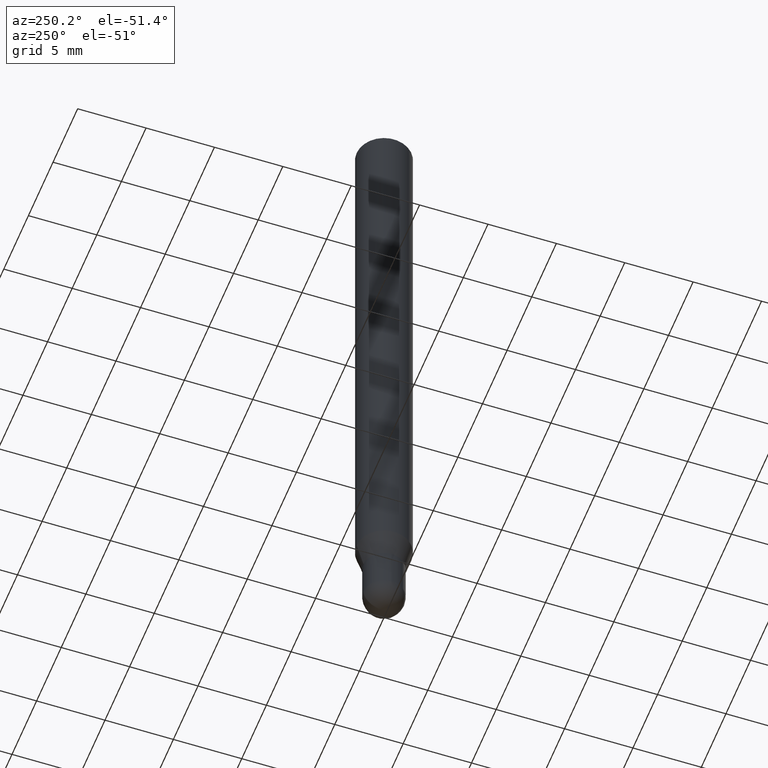
[diagram: clean part render]
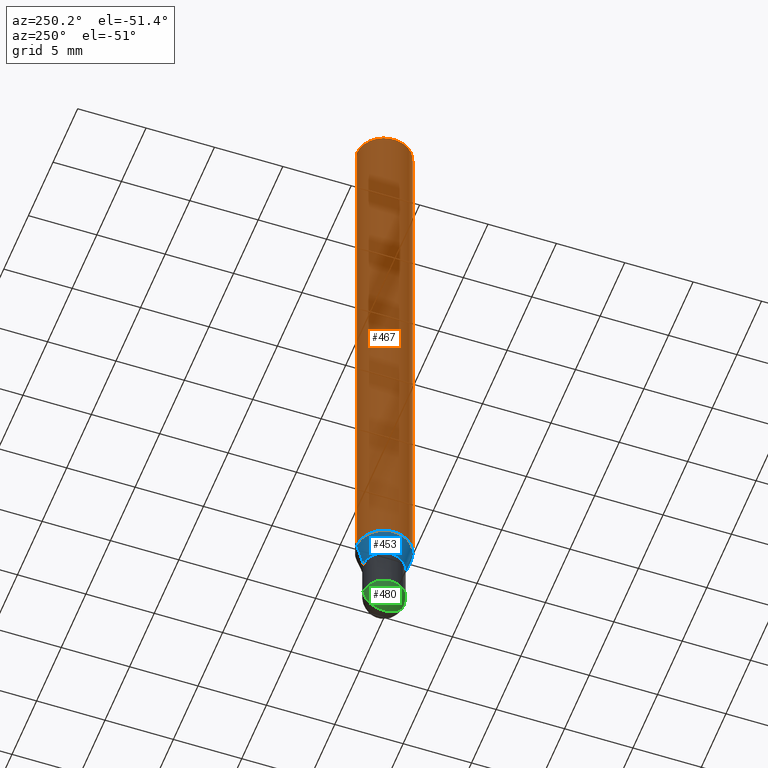
[diagram: same view with three faces highlighted in distinct colors, each labeled with its STEP entity id]
A machine part, auxiliary view with three faces highlighted in distinct colors.
Their STEP definitions:

[orange] entity #467 — the highlighted cylindrical surface (edge-blend (fillet) strip) has radius 2.0002 mm, axis along (-0, 0, 1).
#1 = CARTESIAN_POINT ( 'NONE',  ( 0.000000000000000000, 0.000000000000000000, 0.000000000000000000 ) ) ;
#16 = CARTESIAN_POINT ( 'NONE',  ( -5.499083108677930499E-16, -0.07875000000000004219, -0.01499999999999948944 ) ) ;
#49 = DIRECTION ( 'NONE',  ( -2.445166276302785085E-29, 3.491914578853604397E-15, 1.000000000000000000 ) ) ;
#51 = CARTESIAN_POINT ( 'NONE',  ( 5.595524044111208086E-16, 0.07874999999999401923, -1.717978599090896230 ) ) ;
#52 = CARTESIAN_POINT ( 'NONE',  ( 4.200743333906961214E-29, -5.999034516323990966E-15, -1.717978599090895786 ) ) ;
#54 = VERTEX_POINT ( 'NONE', #16 ) ;
#122 = EDGE_CURVE ( 'NONE', #133, #54, #143, .T. ) ;
#124 = DIRECTION ( 'NONE',  ( -6.982962677686264344E-15, -1.000000000000000000, 3.496114991891765576E-15 ) ) ;
#132 = DIRECTION ( 'NONE',  ( -6.982962677686264344E-15, -1.000000000000000000, 3.491914578853604002E-15 ) ) ;
#133 = VERTEX_POINT ( 'NONE', #436 ) ;
#143 = CIRCLE ( 'NONE', #299, 0.07875000000000000056 ) ;
#147 = CARTESIAN_POINT ( 'NONE',  ( -5.499083108677514374E-16, -0.07875000000000596800, -1.717978599090895564 ) ) ;
#161 = DIRECTION ( 'NONE',  ( -6.982962677686264344E-15, -1.000000000000000000, 3.469013325287953293E-15 ) ) ;
#163 = CARTESIAN_POINT ( 'NONE',  ( 3.667749414454120420E-31, -5.237871868280324701E-17, -0.01499999999999976526 ) ) ;
#202 = DIRECTION ( 'NONE',  ( -2.445166276302785085E-29, 3.491914578853604397E-15, 1.000000000000000000 ) ) ;
#204 = EDGE_CURVE ( 'NONE', #505, #322, #304, .T. ) ;
#205 = FACE_OUTER_BOUND ( 'NONE', #272, .T. ) ;
#224 = LINE ( 'NONE', #386, #306 ) ;
#228 = DIRECTION ( 'NONE',  ( -2.445166276302785085E-29, 3.491914578853604397E-15, 1.000000000000000000 ) ) ;
#238 = CARTESIAN_POINT ( 'NONE',  ( -5.499083108677933457E-16, -0.07875000000000000056, 2.749882730847213270E-16 ) ) ;
#272 = EDGE_LOOP ( 'NONE', ( #307, #279, #348, #465 ) ) ;
#279 = ORIENTED_EDGE ( 'NONE', *, *, #204, .T. ) ;
#299 = AXIS2_PLACEMENT_3D ( 'NONE', #163, #228, #124 ) ;
#304 = CIRCLE ( 'NONE', #407, 0.07875000000000000056 ) ;
#306 = VECTOR ( 'NONE', #341, 39.37007874015748143 ) ;
#307 = ORIENTED_EDGE ( 'NONE', *, *, #400, .F. ) ;
#322 = VERTEX_POINT ( 'NONE', #147 ) ;
#326 = DIRECTION ( 'NONE',  ( -2.445166276302785085E-29, 3.491914578853604397E-15, 1.000000000000000000 ) ) ;
#341 = DIRECTION ( 'NONE',  ( -2.445166276302785085E-29, 3.491914578853604397E-15, 1.000000000000000000 ) ) ;
#348 = ORIENTED_EDGE ( 'NONE', *, *, #488, .T. ) ;
#386 = CARTESIAN_POINT ( 'NONE',  ( 5.595524044110787031E-16, 0.07875000000000000056, -2.749882730847213270E-16 ) ) ;
#390 = VECTOR ( 'NONE', #49, 39.37007874015748143 ) ;
#400 = EDGE_CURVE ( 'NONE', #505, #133, #224, .T. ) ;
#402 = LINE ( 'NONE', #238, #390 ) ;
#407 = AXIS2_PLACEMENT_3D ( 'NONE', #52, #202, #161 ) ;
#419 = AXIS2_PLACEMENT_3D ( 'NONE', #1, #326, #132 ) ;
#436 = CARTESIAN_POINT ( 'NONE',  ( 5.595524044111210058E-16, 0.07874999999999994504, -0.01500000000000004108 ) ) ;
#441 = CYLINDRICAL_SURFACE ( 'NONE', #419, 0.07875000000000000056 ) ;
#465 = ORIENTED_EDGE ( 'NONE', *, *, #122, .F. ) ;
#467 = ADVANCED_FACE ( 'NONE', ( #205 ), #441, .T. ) ;
#488 = EDGE_CURVE ( 'NONE', #322, #54, #402, .T. ) ;
#505 = VERTEX_POINT ( 'NONE', #51 ) ;

[blue] entity #453 — the highlighted conical surface has half-angle 15 deg.
#4 = VERTEX_POINT ( 'NONE', #284 ) ;
#25 = ORIENTED_EDGE ( 'NONE', *, *, #438, .T. ) ;
#37 = ORIENTED_EDGE ( 'NONE', *, *, #204, .F. ) ;
#51 = CARTESIAN_POINT ( 'NONE',  ( 5.595524044111208086E-16, 0.07874999999999401923, -1.717978599090896230 ) ) ;
#52 = CARTESIAN_POINT ( 'NONE',  ( 4.200743333906961214E-29, -5.999034516323990966E-15, -1.717978599090895786 ) ) ;
#63 = AXIS2_PLACEMENT_3D ( 'NONE', #195, #350, #365 ) ;
#70 = VECTOR ( 'NONE', #271, 39.37007874015748854 ) ;
#130 = CONICAL_SURFACE ( 'NONE', #63, 0.05905000000000020649, 0.2617993877991570129 ) ;
#147 = CARTESIAN_POINT ( 'NONE',  ( -5.499083108677514374E-16, -0.07875000000000596800, -1.717978599090895564 ) ) ;
#151 = DIRECTION ( 'NONE',  ( -1.807323732225375499E-15, -0.2588190451025246808, 0.9659258262890673130 ) ) ;
#161 = DIRECTION ( 'NONE',  ( -6.982962677686264344E-15, -1.000000000000000000, 3.469013325287953293E-15 ) ) ;
#190 = CARTESIAN_POINT ( 'NONE',  ( 4.380515383996438847E-29, -6.255764968016230581E-15, -1.791499999999999648 ) ) ;
#195 = CARTESIAN_POINT ( 'NONE',  ( 4.380515383996438847E-29, -6.255764968016230581E-15, -1.791499999999999648 ) ) ;
#201 = VERTEX_POINT ( 'NONE', #290 ) ;
#202 = DIRECTION ( 'NONE',  ( -2.445166276302785085E-29, 3.491914578853604397E-15, 1.000000000000000000 ) ) ;
#204 = EDGE_CURVE ( 'NONE', #505, #322, #304, .T. ) ;
#237 = VECTOR ( 'NONE', #151, 39.37007874015748854 ) ;
#259 = EDGE_CURVE ( 'NONE', #4, #505, #428, .T. ) ;
#271 = DIRECTION ( 'NONE',  ( 1.839019923739646069E-15, 0.2588190451025313976, 0.9659258262890653146 ) ) ;
#278 = EDGE_CURVE ( 'NONE', #201, #322, #466, .T. ) ;
#284 = CARTESIAN_POINT ( 'NONE',  ( 4.895639449387525347E-16, 0.05904999999999394761, -1.791500000000000092 ) ) ;
#290 = CARTESIAN_POINT ( 'NONE',  ( -4.123439461173316314E-16, -0.05905000000000645843, -1.791499999999999426 ) ) ;
#302 = CARTESIAN_POINT ( 'NONE',  ( 4.195754854663843594E-16, 0.05904999999999394761, -1.791500000000000092 ) ) ;
#304 = CIRCLE ( 'NONE', #407, 0.07875000000000000056 ) ;
#313 = CIRCLE ( 'NONE', #354, 0.05905000000000020649 ) ;
#322 = VERTEX_POINT ( 'NONE', #147 ) ;
#343 = DIRECTION ( 'NONE',  ( -2.445166276302785085E-29, 3.491914578853604397E-15, 1.000000000000000000 ) ) ;
#350 = DIRECTION ( 'NONE',  ( -2.445166276302785085E-29, 3.491914578853604397E-15, 1.000000000000000000 ) ) ;
#354 = AXIS2_PLACEMENT_3D ( 'NONE', #190, #343, #507 ) ;
#359 = FACE_OUTER_BOUND ( 'NONE', #491, .T. ) ;
#365 = DIRECTION ( 'NONE',  ( -6.982962677686265922E-15, -1.000000000000000000, 4.626330217890353559E-15 ) ) ;
#406 = ORIENTED_EDGE ( 'NONE', *, *, #259, .F. ) ;
#407 = AXIS2_PLACEMENT_3D ( 'NONE', #52, #202, #161 ) ;
#428 = LINE ( 'NONE', #302, #70 ) ;
#438 = EDGE_CURVE ( 'NONE', #4, #201, #313, .T. ) ;
#453 = ADVANCED_FACE ( 'NONE', ( #359 ), #130, .T. ) ;
#466 = LINE ( 'NONE', #472, #237 ) ;
#472 = CARTESIAN_POINT ( 'NONE',  ( -4.123439461173316314E-16, -0.05905000000000645843, -1.791499999999999426 ) ) ;
#491 = EDGE_LOOP ( 'NONE', ( #406, #25, #509, #37 ) ) ;
#505 = VERTEX_POINT ( 'NONE', #51 ) ;
#507 = DIRECTION ( 'NONE',  ( -6.982962677686265922E-15, -1.000000000000000000, 4.626330217890353559E-15 ) ) ;
#509 = ORIENTED_EDGE ( 'NONE', *, *, #278, .T. ) ;

[green] entity #480 — the highlighted spherical surface has radius 1.4999 mm.
#3 = CIRCLE ( 'NONE', #26, 0.05904999999999999138 ) ;
#26 = AXIS2_PLACEMENT_3D ( 'NONE', #512, #148, #471 ) ;
#59 = EDGE_CURVE ( 'NONE', #243, #65, #268, .T. ) ;
#65 = VERTEX_POINT ( 'NONE', #422 ) ;
#76 = AXIS2_PLACEMENT_3D ( 'NONE', #464, #93, #107 ) ;
#80 = CARTESIAN_POINT ( 'NONE',  ( 4.664450655032605070E-29, -6.674040581803010003E-15, -1.909450000000000092 ) ) ;
#93 = DIRECTION ( 'NONE',  ( -2.445468806185136597E-29, 3.491481338843145583E-15, 1.000000000000000000 ) ) ;
#106 = CARTESIAN_POINT ( 'NONE',  ( 4.664450655032605070E-29, -6.674040581803010003E-15, -1.909450000000000092 ) ) ;
#107 = DIRECTION ( 'NONE',  ( 1.000000000000000000, -6.982962677686273810E-15, 0.000000000000000000 ) ) ;
#108 = EDGE_LOOP ( 'NONE', ( #358, #327, #125, #398 ) ) ;
#110 = CARTESIAN_POINT ( 'NONE',  ( -4.195754854662919641E-16, -0.05905000000000660415, -1.909449999999999870 ) ) ;
#123 = FACE_OUTER_BOUND ( 'NONE', #108, .T. ) ;
#125 = ORIENTED_EDGE ( 'NONE', *, *, #301, .F. ) ;
#148 = DIRECTION ( 'NONE',  ( -2.445468806185136597E-29, 3.491481338843145583E-15, 1.000000000000000000 ) ) ;
#158 = SPHERICAL_SURFACE ( 'NONE', #397, 0.05904999999999987342 ) ;
#160 = DIRECTION ( 'NONE',  ( -1.000000000000000000, 7.105427357601001070E-15, -4.926315508542082329E-29 ) ) ;
#170 = VERTEX_POINT ( 'NONE', #462 ) ;
#223 = EDGE_CURVE ( 'NONE', #170, #318, #375, .T. ) ;
#243 = VERTEX_POINT ( 'NONE', #433 ) ;
#244 = AXIS2_PLACEMENT_3D ( 'NONE', #260, #424, #266 ) ;
#260 = CARTESIAN_POINT ( 'NONE',  ( 4.664450655032605070E-29, -6.674040581803010003E-15, -1.909450000000000092 ) ) ;
#266 = DIRECTION ( 'NONE',  ( 6.982962677686265922E-15, 1.000000000000000000, 0.000000000000000000 ) ) ;
#268 = CIRCLE ( 'NONE', #76, 0.05904999999999999138 ) ;
#281 = AXIS2_PLACEMENT_3D ( 'NONE', #106, #160, #503 ) ;
#286 = DIRECTION ( 'NONE',  ( -1.000000000000000000, 6.982962677686265133E-15, -4.883557194083112340E-29 ) ) ;
#301 = EDGE_CURVE ( 'NONE', #65, #318, #3, .T. ) ;
#305 = EDGE_CURVE ( 'NONE', #170, #243, #443, .T. ) ;
#318 = VERTEX_POINT ( 'NONE', #110 ) ;
#327 = ORIENTED_EDGE ( 'NONE', *, *, #223, .T. ) ;
#358 = ORIENTED_EDGE ( 'NONE', *, *, #305, .F. ) ;
#375 = CIRCLE ( 'NONE', #281, 0.05904999999999987342 ) ;
#397 = AXIS2_PLACEMENT_3D ( 'NONE', #80, #286, #486 ) ;
#398 = ORIENTED_EDGE ( 'NONE', *, *, #59, .F. ) ;
#422 = CARTESIAN_POINT ( 'NONE',  ( -0.05904999999999999138, -6.040974296895546811E-15, -1.909450000000000092 ) ) ;
#424 = DIRECTION ( 'NONE',  ( 1.000000000000000000, -6.982962677686265922E-15, 4.883557194083112340E-29 ) ) ;
#433 = CARTESIAN_POINT ( 'NONE',  ( 4.123439461174201318E-16, 0.05904999999999325372, -1.909450000000000314 ) ) ;
#443 = CIRCLE ( 'NONE', #244, 0.05904999999999987342 ) ;
#462 = CARTESIAN_POINT ( 'NONE',  ( 4.811380466506639703E-29, -6.876596785187214388E-15, -1.968499999999999694 ) ) ;
#464 = CARTESIAN_POINT ( 'NONE',  ( 4.669500411970209334E-29, -6.666809042454044642E-15, -1.909450000000000092 ) ) ;
#471 = DIRECTION ( 'NONE',  ( 1.000000000000000000, -6.982962677686273810E-15, 0.000000000000000000 ) ) ;
#480 = ADVANCED_FACE ( 'NONE', ( #123 ), #158, .T. ) ;
#486 = DIRECTION ( 'NONE',  ( 6.982962677686265133E-15, 1.000000000000000000, -4.626330217890379591E-15 ) ) ;
#503 = DIRECTION ( 'NONE',  ( -7.105427357601000281E-15, -1.000000000000000000, 0.000000000000000000 ) ) ;
#512 = CARTESIAN_POINT ( 'NONE',  ( 4.669500411970209334E-29, -6.666809042454044642E-15, -1.909450000000000092 ) ) ;